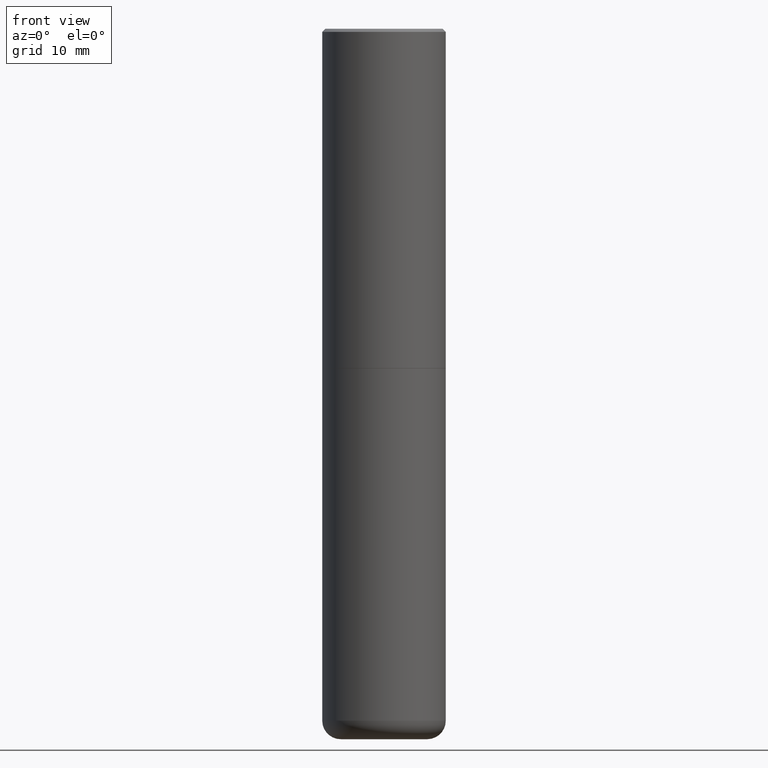
[diagram: clean part render]
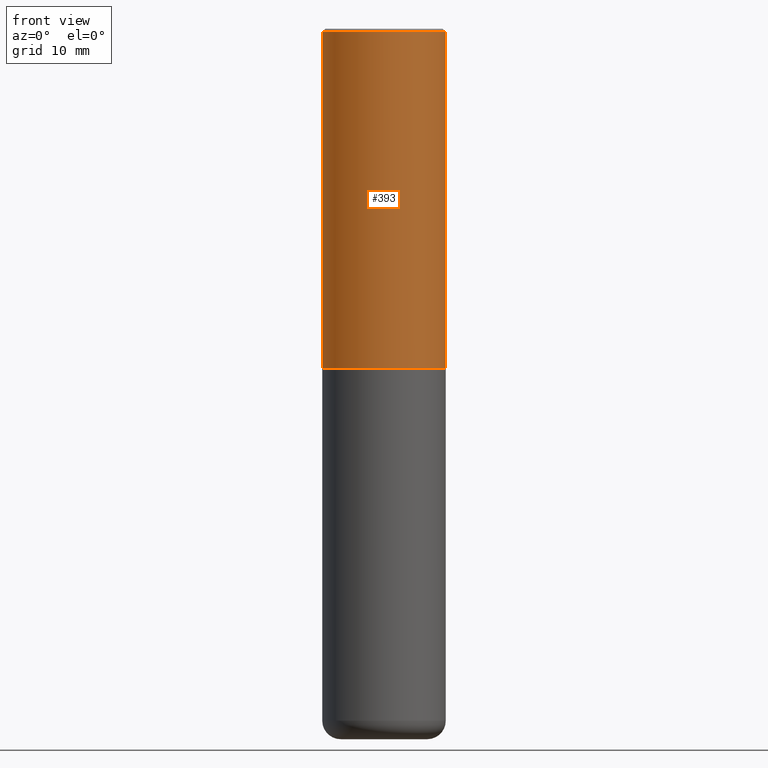
[diagram: same view with one face highlighted and labeled with its STEP entity id]
A machine part, front view. The second image highlights one B-rep face of the part: STEP entity #393.
In plain terms, the highlighted cylindrical surface (partial cylindrical patch) has radius 10 mm, axis along (-0, 0, 1).
Its self-contained STEP definition (entity closure, byte-faithful):
#5 = EDGE_CURVE ( 'NONE', #162, #307, #29, .T. ) ;
#19 = VERTEX_POINT ( 'NONE', #332 ) ;
#29 = LINE ( 'NONE', #219, #386 ) ;
#34 = DIRECTION ( 'NONE',  ( -2.445468806185136597E-29, 3.491481338843145583E-15, 1.000000000000000000 ) ) ;
#39 = EDGE_CURVE ( 'NONE', #388, #162, #161, .T. ) ;
#50 = EDGE_LOOP ( 'NONE', ( #68, #309, #148, #212 ) ) ;
#63 = CARTESIAN_POINT ( 'NONE',  ( 0.3937000000000002720, -1.030615461599718763E-14, -2.164399999999999658 ) ) ;
#68 = ORIENTED_EDGE ( 'NONE', *, *, #226, .F. ) ;
#70 = DIRECTION ( 'NONE',  ( 1.000000000000000000, -6.982962677686266711E-15, 0.000000000000000000 ) ) ;
#76 = DIRECTION ( 'NONE',  ( -2.445468806185136597E-29, 3.491481338843145583E-15, 1.000000000000000000 ) ) ;
#77 = CARTESIAN_POINT ( 'NONE',  ( 0.000000000000000000, 0.000000000000000000, 0.000000000000000000 ) ) ;
#94 = FACE_OUTER_BOUND ( 'NONE', #50, .T. ) ;
#148 = ORIENTED_EDGE ( 'NONE', *, *, #5, .T. ) ;
#152 = DIRECTION ( 'NONE',  ( -2.445468806185136597E-29, 3.491481338843145583E-15, 1.000000000000000000 ) ) ;
#161 = CIRCLE ( 'NONE', #191, 0.3937000000000002720 ) ;
#162 = VERTEX_POINT ( 'NONE', #63 ) ;
#188 = CARTESIAN_POINT ( 'NONE',  ( 0.3937000000000001054, -2.770807688499516128E-15, -0.02000000000000008715 ) ) ;
#191 = AXIS2_PLACEMENT_3D ( 'NONE', #390, #34, #359 ) ;
#212 = ORIENTED_EDGE ( 'NONE', *, *, #400, .F. ) ;
#216 = AXIS2_PLACEMENT_3D ( 'NONE', #77, #152, #237 ) ;
#219 = CARTESIAN_POINT ( 'NONE',  ( 0.3937000000000002164, -2.749192406205084794E-15, 1.919750796630861012E-29 ) ) ;
#222 = CARTESIAN_POINT ( 'NONE',  ( -0.3937000000000002164, 2.797406750687515970E-15, -1.936584745033357576E-29 ) ) ;
#223 = CARTESIAN_POINT ( 'NONE',  ( 4.890937612370294178E-31, -6.982962677686321191E-17, -0.02000000000000008715 ) ) ;
#226 = EDGE_CURVE ( 'NONE', #388, #19, #403, .T. ) ;
#237 = DIRECTION ( 'NONE',  ( 1.000000000000000000, -6.982962677686266711E-15, 4.876176775795935793E-29 ) ) ;
#252 = CARTESIAN_POINT ( 'NONE',  ( -0.3937000000000002720, -1.015989167596965718E-15, -2.164399999999999658 ) ) ;
#293 = DIRECTION ( 'NONE',  ( -2.445468806185136877E-29, 3.491481338843145188E-15, 1.000000000000000000 ) ) ;
#307 = VERTEX_POINT ( 'NONE', #188 ) ;
#309 = ORIENTED_EDGE ( 'NONE', *, *, #39, .T. ) ;
#310 = CIRCLE ( 'NONE', #331, 0.3937000000000001054 ) ;
#331 = AXIS2_PLACEMENT_3D ( 'NONE', #223, #76, #70 ) ;
#332 = CARTESIAN_POINT ( 'NONE',  ( -0.3937000000000001054, 2.679362779428220707E-15, -0.02000000000000008715 ) ) ;
#359 = DIRECTION ( 'NONE',  ( 1.000000000000000000, -6.982962677686269077E-15, 0.000000000000000000 ) ) ;
#381 = CYLINDRICAL_SURFACE ( 'NONE', #216, 0.3937000000000002164 ) ;
#386 = VECTOR ( 'NONE', #397, 39.37007874015748143 ) ;
#388 = VERTEX_POINT ( 'NONE', #252 ) ;
#390 = CARTESIAN_POINT ( 'NONE',  ( 5.292972684107107621E-29, -7.556962209792102838E-15, -2.164399999999999658 ) ) ;
#393 = ADVANCED_FACE ( 'NONE', ( #94 ), #381, .T. ) ;
#397 = DIRECTION ( 'NONE',  ( -2.445468806185136877E-29, 3.491481338843145188E-15, 1.000000000000000000 ) ) ;
#400 = EDGE_CURVE ( 'NONE', #19, #307, #310, .T. ) ;
#403 = LINE ( 'NONE', #222, #409 ) ;
#409 = VECTOR ( 'NONE', #293, 39.37007874015748143 ) ;